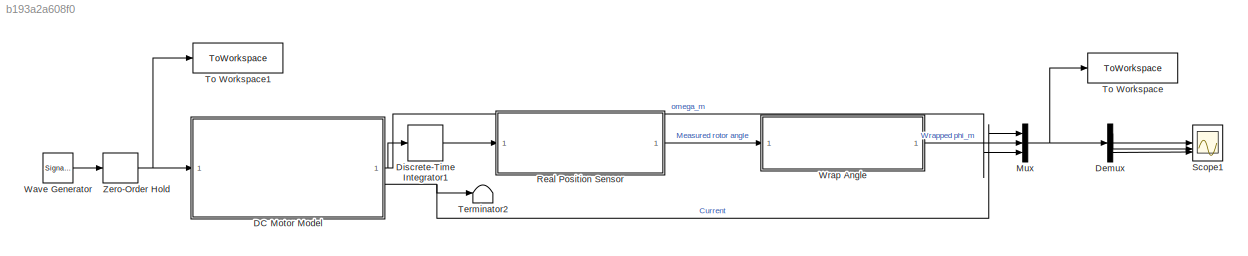
MODEL slx_b193a2a608f0
KIND model
CONFIG AbsTol = auto
CONFIG EnableMultiTasking = off
CONFIG FixedStep = Ts
CONFIG MaxStep = auto
CONFIG MinStep = auto
CONFIG RelTol = 1e-3
CONFIG SampleTimeConstraint = Unconstrained
CONFIG SolverName = VariableStepAuto
CONFIG StartTime = 0.0
CONFIG StopTime = 5
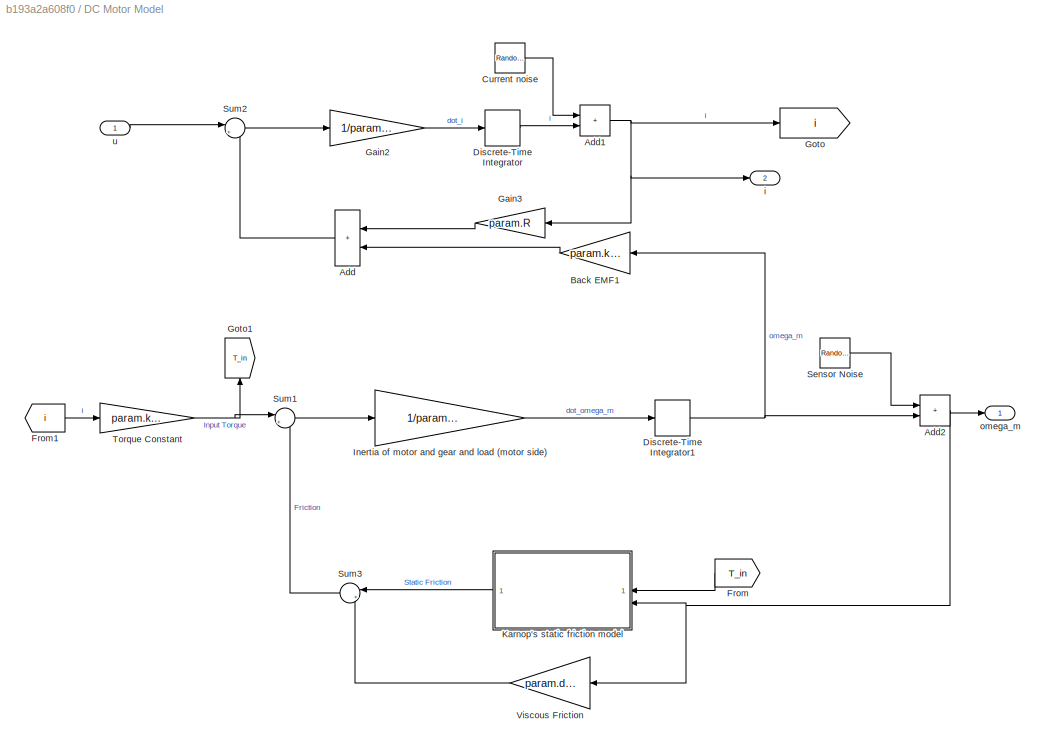
BLOCK [SubSystem] DC Motor Model
BLOCK [Sum] DC Motor Model/Add
  IconShape = rectangular
  NameLocation = top
BLOCK [Sum] DC Motor Model/Add1
  IconShape = rectangular
BLOCK [Sum] DC Motor Model/Add2
  IconShape = rectangular
BLOCK [Gain] DC Motor Model/Back EMF1
  Gain = param.k_t
BLOCK [RandomNumber] DC Motor Model/Current noise
  SampleTime = param.Ts
  Variance = param.std_current_noise
BLOCK [DiscreteIntegrator] DC Motor Model/Discrete-Time Integrator
  ICPrevOutput = DiscIntNeverNeededParam
  ICPrevScaledInput = DiscIntNeverNeededParam
  InitialConditionSetting = Auto
  SampleTime = param.Ts
BLOCK [DiscreteIntegrator] DC Motor Model/Discrete-Time Integrator1
  ICPrevOutput = DiscIntNeverNeededParam
  ICPrevScaledInput = DiscIntNeverNeededParam
  InitialConditionSetting = Auto
  SampleTime = param.Ts
BLOCK [From] DC Motor Model/From
  GotoTag = T_in
  NameLocation = top
BLOCK [From] DC Motor Model/From1
  GotoTag = i
BLOCK [Gain] DC Motor Model/Gain2
  Gain = 1/param.L
BLOCK [Gain] DC Motor Model/Gain3
  Gain = param.R
  NameLocation = top
BLOCK [Goto] DC Motor Model/Goto
  GotoTag = i
BLOCK [Goto] DC Motor Model/Goto1
  GotoTag = T_in
  NameLocation = right
BLOCK [Gain] DC Motor Model/Inertia of motor and gear and load (motor side)
  Gain = 1/param.J_es
  NameLocation = top
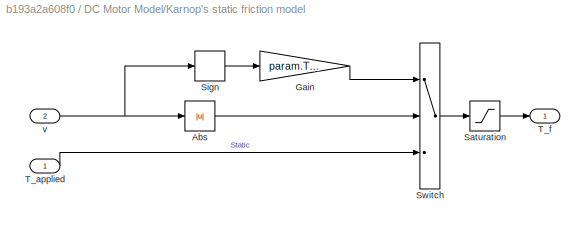
BLOCK [SubSystem] DC Motor Model/Karnop's static friction model
  NameLocation = top
BLOCK [Abs] DC Motor Model/Karnop's static friction model/Abs
  SaturateOnIntegerOverflow = off
BLOCK [Gain] DC Motor Model/Karnop's static friction model/Gain
  Gain = param.T_c
BLOCK [Saturate] DC Motor Model/Karnop's static friction model/Saturation
  LowerLimit = -param.T_c
  UpperLimit = param.T_c
BLOCK [Signum] DC Motor Model/Karnop's static friction model/Sign
BLOCK [Switch] DC Motor Model/Karnop's static friction model/Switch
  Criteria = u2 > Threshold
  InputSameDT = off
  SaturateOnIntegerOverflow = off
  Threshold = param.d_v
  ZeroCross = off
BLOCK [Inport] DC Motor Model/Karnop's static friction model/T_applied
BLOCK [Outport] DC Motor Model/Karnop's static friction model/T_f
BLOCK [Inport] DC Motor Model/Karnop's static friction model/v
  Port = 2
BLOCK [RandomNumber] DC Motor Model/Sensor Noise
  SampleTime = param.Ts
  Variance = param.std_encoder_noise
BLOCK [Sum] DC Motor Model/Sum1
  Inputs = |+-
BLOCK [Sum] DC Motor Model/Sum2
  Inputs = |+-
BLOCK [Sum] DC Motor Model/Sum3
  Inputs = |++
  NameLocation = top
BLOCK [Gain] DC Motor Model/Torque Constant
  Gain = param.k_t
BLOCK [Gain] DC Motor Model/Viscous Friction
  Gain = param.d_m
  NameLocation = top
BLOCK [Outport] DC Motor Model/i
  Port = 2
BLOCK [Outport] DC Motor Model/omega_m
BLOCK [Inport] DC Motor Model/u
BLOCK [Demux] Demux
  Outputs = 3
BLOCK [DiscreteIntegrator] Discrete-Time Integrator1
  ICPrevOutput = DiscIntNeverNeededParam
  ICPrevScaledInput = DiscIntNeverNeededParam
  InitialConditionSetting = Auto
  SampleTime = param.Ts
BLOCK [Mux] Mux
  DisplayOption = bar
  Inputs = 3
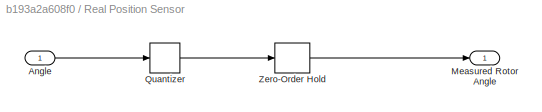
BLOCK [SubSystem] Real Position Sensor
BLOCK [Inport] Real Position Sensor/Angle
BLOCK [Outport] Real Position Sensor/Measured Rotor Angle
BLOCK [Quantizer] Real Position Sensor/Quantizer
  QuantizationInterval = param.quant_interval
BLOCK [ZeroOrderHold] Real Position Sensor/Zero-Order Hold
  SampleTime = param.Ts
BLOCK [Scope] Scope1
  Floating = off
  NumInputPorts = 3
  ScopeSpecificationString = Simulink.scopes.TimeScopeBlockCfg('CurrentConfiguration', extmgr.ConfigurationSet(extmgr.Configuration('Core','General UI',true),extmgr.Configuration('Core','Source UI',true),extmgr.Configuration('Sources','WiredSimulink',true,'DataLoggingVariableName','ScopeData1'),extmgr.Configuration('Visuals','Time Domain',true,'SerializedDisplays',{struct('MinYLimReal','-0.03121','MaxYLimReal','0.0312','YLabe...<+2957ch>
BLOCK [Terminator] Terminator2
BLOCK [ToWorkspace] To Workspace
  FixptAsFi = on
  MaxDataPoints = inf
  SampleTime = param.Ts
  Save2DSignal = 2-D array (concatenate along first dimension)
  VariableName = true_state
BLOCK [ToWorkspace] To Workspace1
  FixptAsFi = on
  MaxDataPoints = inf
  SampleTime = param.Ts
  Save2DSignal = 2-D array (concatenate along first dimension)
  VariableName = voltage
BLOCK [SignalGenerator] Wave Generator
  Amplitude = 24
  Frequency = 50
  Units = rad/sec
  WaveForm = square
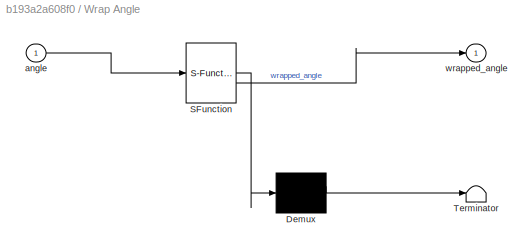
BLOCK [SubSystem] Wrap Angle
  ErrorFcn = Stateflow.Translate.translate
  LibrarySourceBlock = simulink/User-Defined\nFunctions/MATLAB Function
  PermitHierarchicalResolution = ExplicitOnly
  SFBlockType = MATLAB Function
  TreatAsAtomicUnit = on
BLOCK [Demux] Wrap Angle/ Demux 
  Outputs = 1
BLOCK [S-Function] Wrap Angle/ SFunction 
  EnableBusSupport = on
  FunctionName = sf_sfun
  PortCounts = [1 2]
  SFcnIsStateOwnerBlock = off
  SFunctionDeploymentMode = off
  Tag = Stateflow S-Function 3
BLOCK [Terminator] Wrap Angle/ Terminator 
BLOCK [Inport] Wrap Angle/angle
BLOCK [Outport] Wrap Angle/wrapped_angle
BLOCK [ZeroOrderHold] Zero-Order Hold
  SampleTime = param.Ts
NET DC Motor Model/Add1:1 -> DC Motor Model/Gain3:1, DC Motor Model/Goto:1, DC Motor Model/i:1
NET DC Motor Model/Add2:1 -> DC Motor Model/Karnop's static friction model:2, DC Motor Model/Viscous Friction:1, DC Motor Model/omega_m:1
LINE DC Motor Model/Add:1 -> DC Motor Model/Sum2:2
LINE DC Motor Model/Back EMF1:1 -> DC Motor Model/Add:2
LINE DC Motor Model/Current noise:1 -> DC Motor Model/Add1:1
NET DC Motor Model/Discrete-Time Integrator1:1 -> DC Motor Model/Add2:2, DC Motor Model/Back EMF1:1
LINE DC Motor Model/Discrete-Time Integrator:1 -> DC Motor Model/Add1:2
LINE DC Motor Model/From1:1 -> DC Motor Model/Torque Constant:1
LINE DC Motor Model/From:1 -> DC Motor Model/Karnop's static friction model:1
LINE DC Motor Model/Gain2:1 -> DC Motor Model/Discrete-Time Integrator:1
LINE DC Motor Model/Gain3:1 -> DC Motor Model/Add:1
LINE DC Motor Model/Inertia of motor and gear and load (motor side):1 -> DC Motor Model/Discrete-Time Integrator1:1
LINE DC Motor Model/Karnop's static friction model/Abs:1 -> DC Motor Model/Karnop's static friction model/Switch:2
LINE DC Motor Model/Karnop's static friction model/Gain:1 -> DC Motor Model/Karnop's static friction model/Switch:1
LINE DC Motor Model/Karnop's static friction model/Saturation:1 -> DC Motor Model/Karnop's static friction model/T_f:1
LINE DC Motor Model/Karnop's static friction model/Sign:1 -> DC Motor Model/Karnop's static friction model/Gain:1
LINE DC Motor Model/Karnop's static friction model/Switch:1 -> DC Motor Model/Karnop's static friction model/Saturation:1
LINE DC Motor Model/Karnop's static friction model/T_applied:1 -> DC Motor Model/Karnop's static friction model/Switch:3
NET DC Motor Model/Karnop's static friction model/v:1 -> DC Motor Model/Karnop's static friction model/Abs:1, DC Motor Model/Karnop's static friction model/Sign:1
LINE DC Motor Model/Karnop's static friction model:1 -> DC Motor Model/Sum3:1
LINE DC Motor Model/Sensor Noise:1 -> DC Motor Model/Add2:1
LINE DC Motor Model/Sum1:1 -> DC Motor Model/Inertia of motor and gear and load (motor side):1
LINE DC Motor Model/Sum2:1 -> DC Motor Model/Gain2:1
LINE DC Motor Model/Sum3:1 -> DC Motor Model/Sum1:2
NET DC Motor Model/Torque Constant:1 -> DC Motor Model/Goto1:1, DC Motor Model/Sum1:1
LINE DC Motor Model/Viscous Friction:1 -> DC Motor Model/Sum3:2
LINE DC Motor Model/u:1 -> DC Motor Model/Sum2:1
NET DC Motor Model:1 -> Discrete-Time Integrator1:1, Mux:3
NET DC Motor Model:2 -> Mux:1, Terminator2:1
LINE Demux:1 -> Scope1:1
LINE Demux:2 -> Scope1:2
LINE Demux:3 -> Scope1:3
LINE Discrete-Time Integrator1:1 -> Real Position Sensor:1
NET Mux:1 -> Demux:1, To Workspace:1
LINE Real Position Sensor/Angle:1 -> Real Position Sensor/Quantizer:1
LINE Real Position Sensor/Quantizer:1 -> Real Position Sensor/Zero-Order Hold:1
LINE Real Position Sensor/Zero-Order Hold:1 -> Real Position Sensor/Measured Rotor Angle:1
LINE Real Position Sensor:1 -> Wrap Angle:1
LINE Wave Generator:1 -> Zero-Order Hold:1
LINE Wrap Angle:1 -> Mux:2
NET Zero-Order Hold:1 -> DC Motor Model:1, To Workspace1:1
note: NET lines group one-source signal fan-out (src -> all destinations, sorted); 1:1 wires keep LINE
CHART Wrap Angle states=1 transitions=1
  STATE_LABEL 'eML_blk_kernel()'
  STATE_LABEL 'SCRIPT:\nfunction wrapped_angle = wrap_angle(angle)\nwrapped_angle = mod(angle+pi,2*pi)- pi;\nend\n'
CHART  states=0 transitions=0
